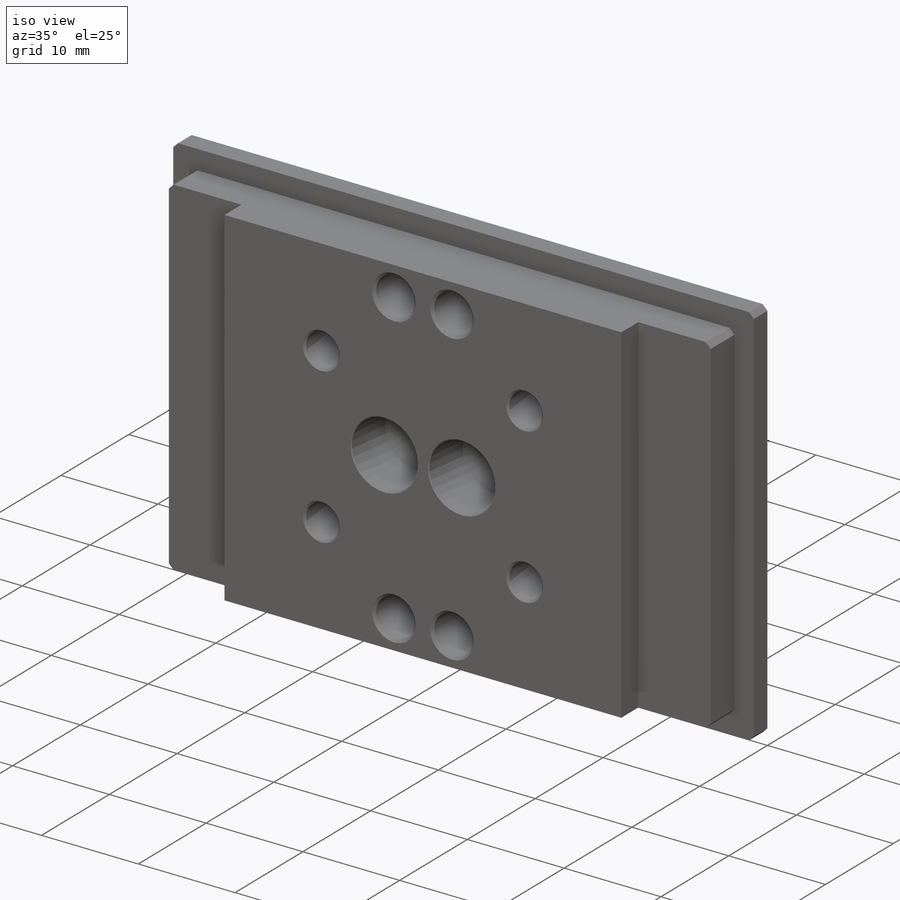
[diagram: iso view]
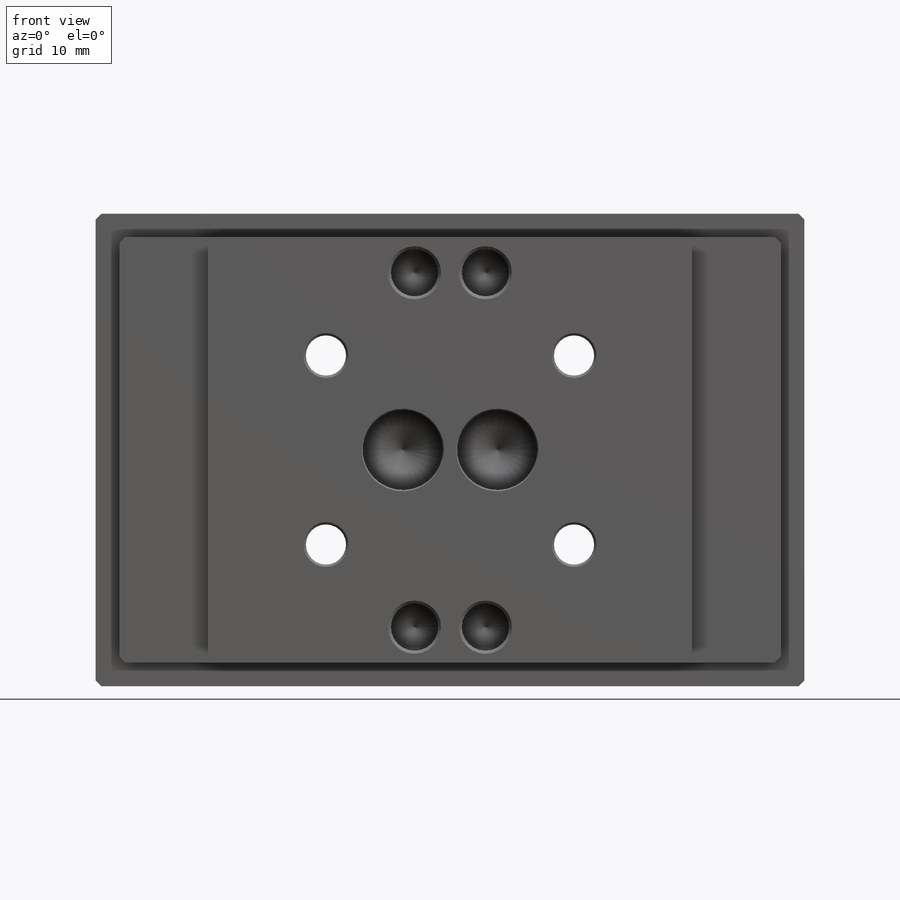
[diagram: front view]
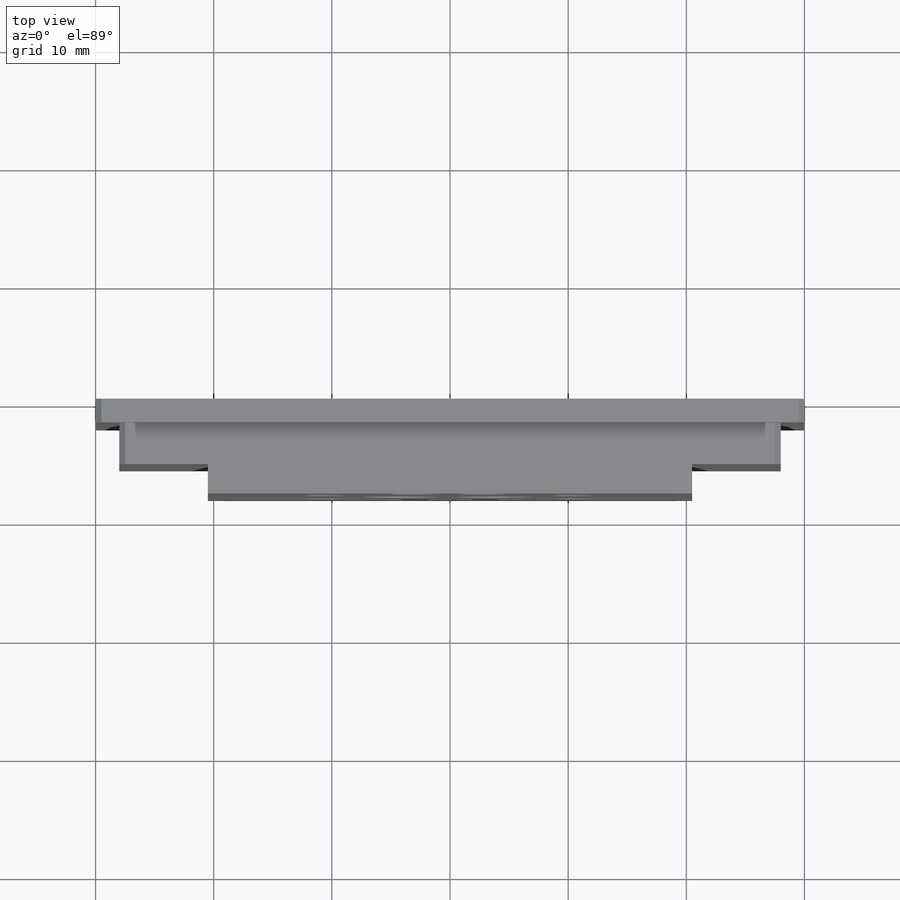
[diagram: top view]
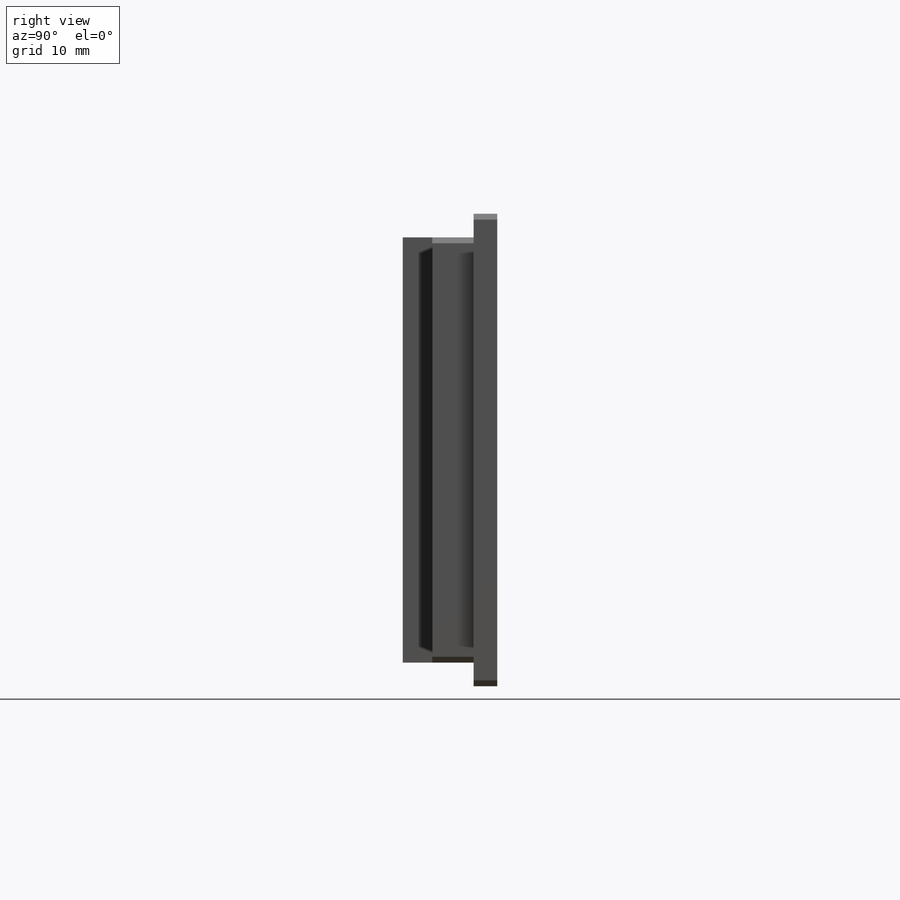
[diagram: right view]
SOLIDWORKS PART (.sldprt)
format: sldprt  version: not decoded by parser v0  size: 413,696 bytes
history: native  units: mm
features: sketch x9, hole x3, cut_extrude x2, material x1, extrude x1, chamfer x1 (+14 scaffold rows collapsed)
feature tree (31):
  scaffold x14  (default folders/planes/origin — collapsed)
  material  "Акрил (Средняя-высокая ударопрочность)"
  sketch  "Эскиз1"  dims[D1=40.0mm D2=60.0mm]
  extrude  "Бобышка-Вытянуть1"  Depth=8mm
  sketch  "Эскиз2"  dims[D1=36.0mm D2=56.0mm]
  cut_extrude  "Вырез-Вытянуть1"  Depth=2mm
  chamfer  "Фаска1"  Distance=0.5mm Angle=45deg
  hole  "Диаметр отверстия Ø4.0 (4)1"  [1 undecoded]
  sketch  "Эскиз4"  dims[D1=6.0mm D2=30.0mm D3=15.0mm D4=3.0mm]
  sketch  "Эскиз3"  dims[hole-wizard template sketch: 39 standard entries collapsed; hole parameters kept: c13.Диаметр отверстия=4.0mm c13.Глубина отверстия=4.5mm c13.Диаметр передней зенковки=4.5mm c13.D4=~33.297463mm c13.Угол передней зенковки=90.0deg c14.D5=~14.816244mm c14.Угол заточки сверла=118.0deg]
  hole  "Цековка для винта с внутренним шестигранником M31"  [1 undecoded]
  sketch  "Эскиз6"  dims[D1=21.0mm D2=10.5mm D3=8.0mm D4=16.0mm]
  sketch  "Эскиз5"  dims[hole-wizard template sketch: 28 standard entries collapsed; hole parameters kept: c8.Диаметр сквозного отверстия=3.4mm c8.Глубина сквозного отверстия=8.0mm c8.Диаметр цековки=6.5mm c8.Глубина цековки=3.5mm c8.Диаметр передней зенковки=7.0mm c8.D6=~4.444873mm c8.Угол передней зенковки=90.0deg c8.Диаметр средней зенковки=3.8mm c8.D8=~4.444873mm c8.Угол средней зенковки=90.0deg c8.Диаметр задней зенковки=3.8mm c8.D10=~8.980256mm c8.Угол задней зенковки=90.0deg]
  sketch  "Эскиз7"  dims[D1=7.5mm D2=2.5mm]
  cut_extrude  "Вырез-Вытянуть2"  [1 undecoded]
  hole  "Диаметр отверстия Ø6.8 (6.8)1"  [1 undecoded]
  sketch  "Эскиз9"  dims[D1=4.0mm D2=8.0mm]
  sketch  "Эскиз8"  dims[hole-wizard template sketch: 39 standard entries collapsed; hole parameters kept: c13.Диаметр отверстия=6.8mm c13.Глубина отверстия=5.0mm c13.Диаметр передней зенковки=7.0mm c13.D4=~33.297463mm c13.Угол передней зенковки=90.0deg c14.D5=~14.816244mm c14.Угол заточки сверла=118.0deg]
decode coverage: 12 of 16 modeling features carry decoded parameters
note: ~ marks probable driven/reference dimensions
note: 4 parameter values undecoded
summary: no parameter record found for 4 features
note: suppression state not decoded; provenance and decode notes live in map.json
